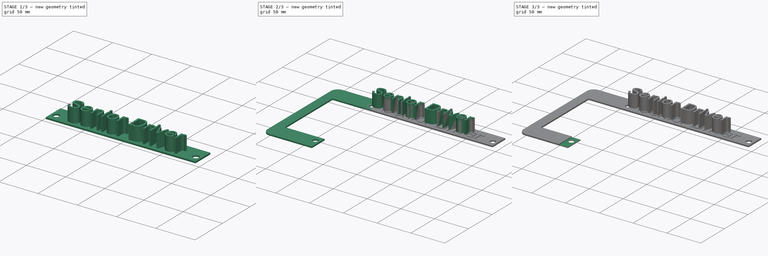
[diagram: build sequence overview — one tinted view per stage of 3, left to right]
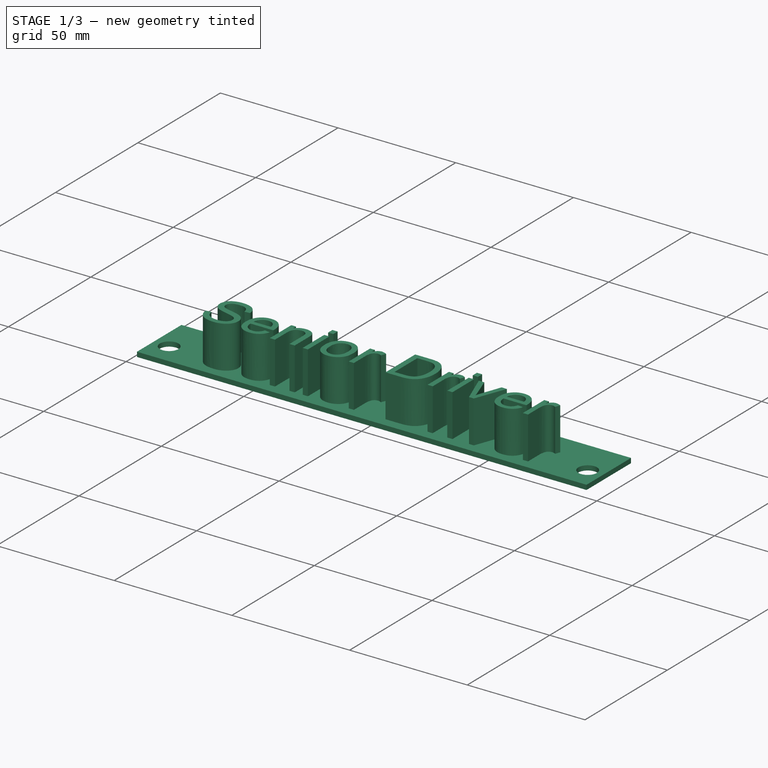
[diagram: stage 1 of 3 — iso view after this stage's code; geometry added in this stage tinted green]
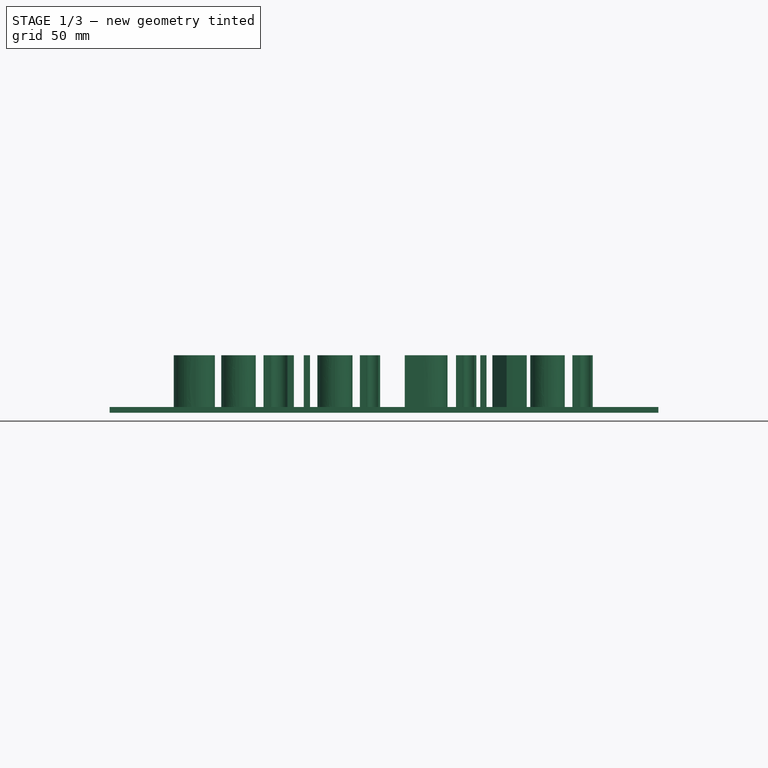
[diagram: stage 1 of 3 — front view after this stage's code; geometry added in this stage tinted green]
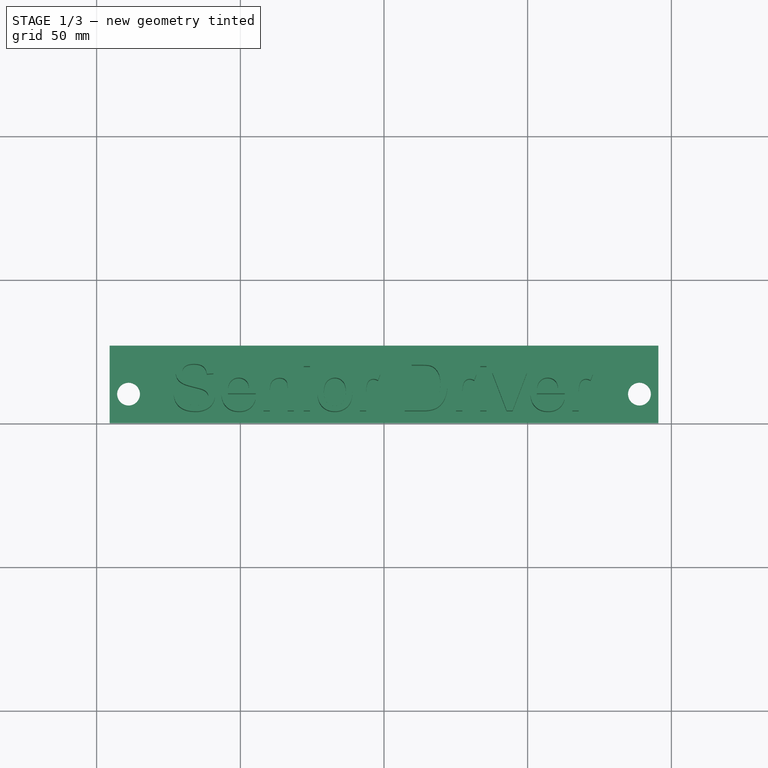
[diagram: stage 1 of 3 — top view after this stage's code; geometry added in this stage tinted green]
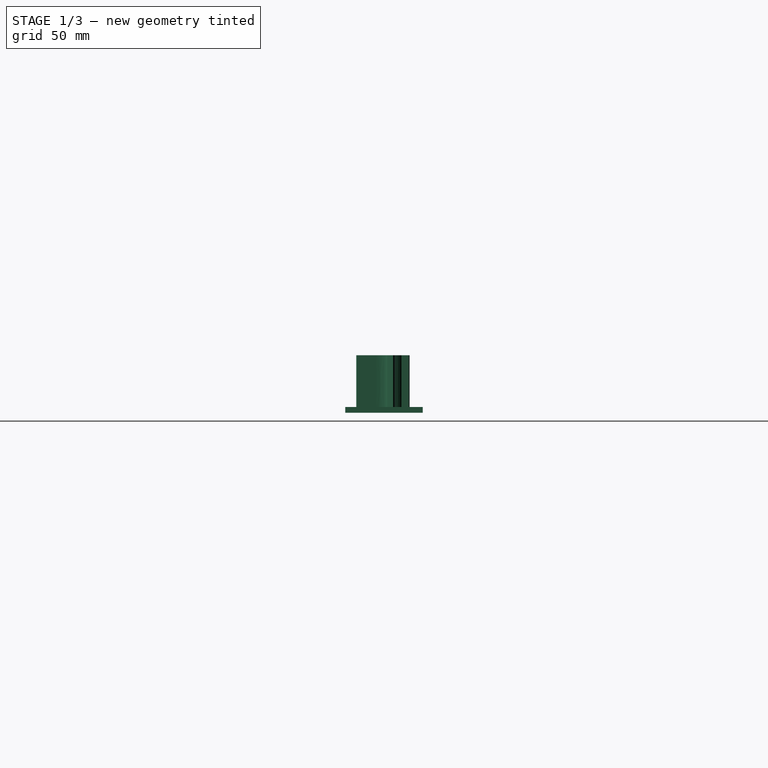
[diagram: stage 1 of 3 — right view after this stage's code; geometry added in this stage tinted green]
FCSTD DOCUMENT  (FreeCAD 0.22R35554 (Git))
Label: License_plate_frame_V2
License: All rights reserved
LicenseURL: http://en.wikipedia.org/wiki/All_rights_reserved
objects: Sketcher::SketchObject×2, PartDesign::Pad×2, PartDesign::SubtractiveBox×2, PartDesign::Body×2, Part::Part2DObjectPython×2, Part::Extrusion×2, Spreadsheet::Sheet×1, Part::Cut×1
note: 17 computed .brp shape members not serialized (recipe doc carries the construction recipe); baked Part::Feature solids carry a one-line shape summary decoded from their .brp

FEATURE [PartDesign::Body] Body001
  Group = -> [Sketch,Pad,Box,Box001]
  Origin = -> Origin001
  Tip = -> Box001
FEATURE [Sketcher::SketchObject] Sketch001
  FullyConstrained = true
  MapMode = 5
  Support = -> [XY_Plane]
  expr: Constraints[11] = <<vars>>.hole_dia
  expr: Constraints[12] = <<vars>>.hole_horizontal / 2
  expr: Constraints[13] = <<vars>>.hole_vertical / 2
  expr: Constraints[14] = <<vars>>.hole_horizontal / 2
  expr: Constraints[15] = <<vars>>.hole_vertical / 2
  expr: Constraints[16] = <<vars>>.width / 2 + <<vars>>.plate_height
  expr: Constraints[8] = <<vars>>.border_width + 1
  expr: Constraints[9] = <<vars>>.banner_length + <<vars>>.border_width
  sketch-geometry (6):
    g0: LineSegment StartX=-95.5 StartY=77.2 StartZ=0 EndX=-95.5 EndY=50.2 EndZ=0
    g1: LineSegment StartX=-95.5 StartY=50.2 StartZ=0 EndX=95.5 EndY=50.2 EndZ=0
    g2: LineSegment StartX=95.5 StartY=50.2 StartZ=0 EndX=95.5 EndY=77.2 EndZ=0
    g3: LineSegment StartX=95.5 StartY=77.2 StartZ=0 EndX=-95.5 EndY=77.2 EndZ=0
    g4: Circle CenterX=-88.9 CenterY=60.325 CenterZ=0 NormalX=0 NormalY=0 NormalZ=1 AngleXU=0 Radius=3.96875
    g5: Circle CenterX=88.9 CenterY=60.325 CenterZ=0 NormalX=0 NormalY=0 NormalZ=1 AngleXU=0 Radius=3.96875
  constraints (17):
    c: Coincident(g0,g1)
    c: Coincident(g1,g2)
    c: Coincident(g2,g3)
    c: Coincident(g3,g0)
    c: Vertical(g0)
    c: Vertical(g2)
    c: Horizontal(g1)
    c: Symmetric(g0,g2,g-2)
    c: DistanceY(g0,g0) = 27
    c: DistanceX(g3,g3) = 191
    c: Equal(g4,g5)
    c: Diameter(g4) = 7.9375
    c: DistanceX(g4,g-1) = 88.9
    c: DistanceY(g-1,g4) = 60.325
    c: DistanceX(g5) = 88.9
    c: DistanceY(g-1,g5) = 60.325
    c: Distance(g-1,g3) = 77.2
FEATURE [PartDesign::Body] Body
  Group = -> [Sketch001]
  Origin = -> Origin
FEATURE [PartDesign::Pad] Pad001
  Direction = (0,0,1)
  Length = 2
  Length2 = 10
  Profile = -> Sketch001
  ReferenceAxis = -> Sketch001 [N_Axis]
  Type = 0
  expr: Length = <<vars>>.plate_height * 2
FEATURE [Part::Part2DObjectPython] ShapeString001  # Draft 2D object (typed FeaturePython)
  FontFile = <path>
  Fuse = false
  Justification = 6
  JustificationReference = 0
  KeepLeftMargin = false
  MakeFace = true
  ObliqueAngle = 0
  Placement = pos=(-73.17,54.29,2) rot=(0,0,1;0rad)
  ScaleToSize = true
  Size = 18
  String = Senior Driver
  Tracking = 0
FEATURE [Part::Extrusion] Extrude002
  Base = -> ShapeString001
  Dir = (0,0,1)
  DirMode = 2
  FaceMakerClass = Part::FaceMakerBullseye
  LengthFwd = 19
  LengthRev = 0
  Placement = pos=(0,0,-1) rot=(0,0,1;0rad)
  Solid = false
  Symmetric = false
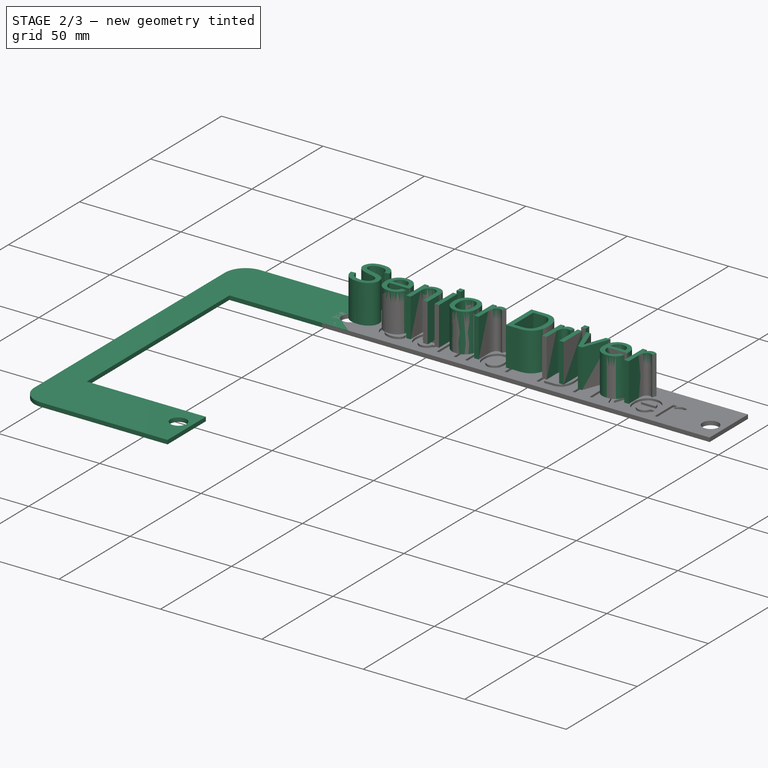
[diagram: stage 2 of 3 — iso view after this stage's code; geometry added in this stage tinted green]
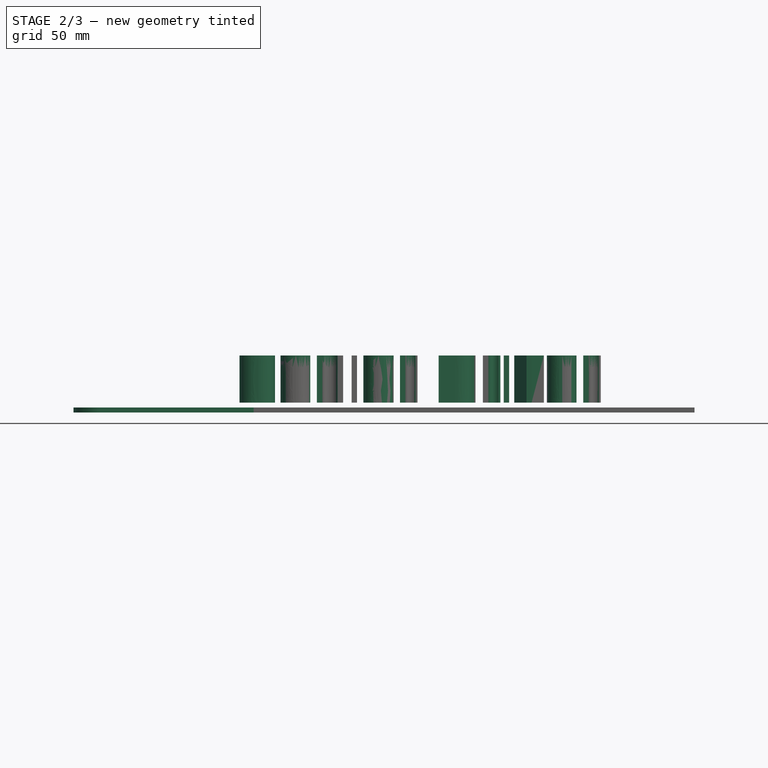
[diagram: stage 2 of 3 — front view after this stage's code; geometry added in this stage tinted green]
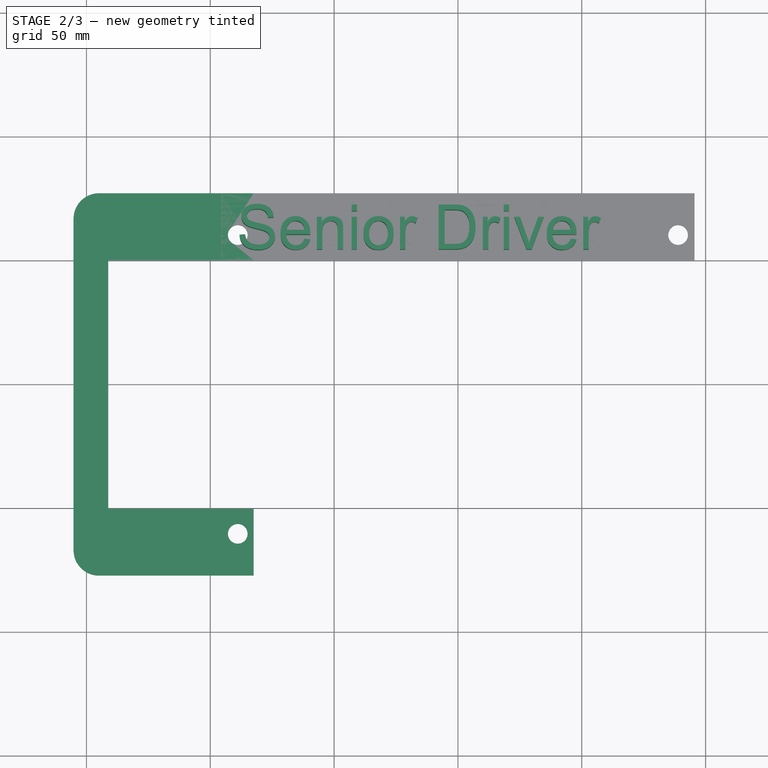
[diagram: stage 2 of 3 — top view after this stage's code; geometry added in this stage tinted green]
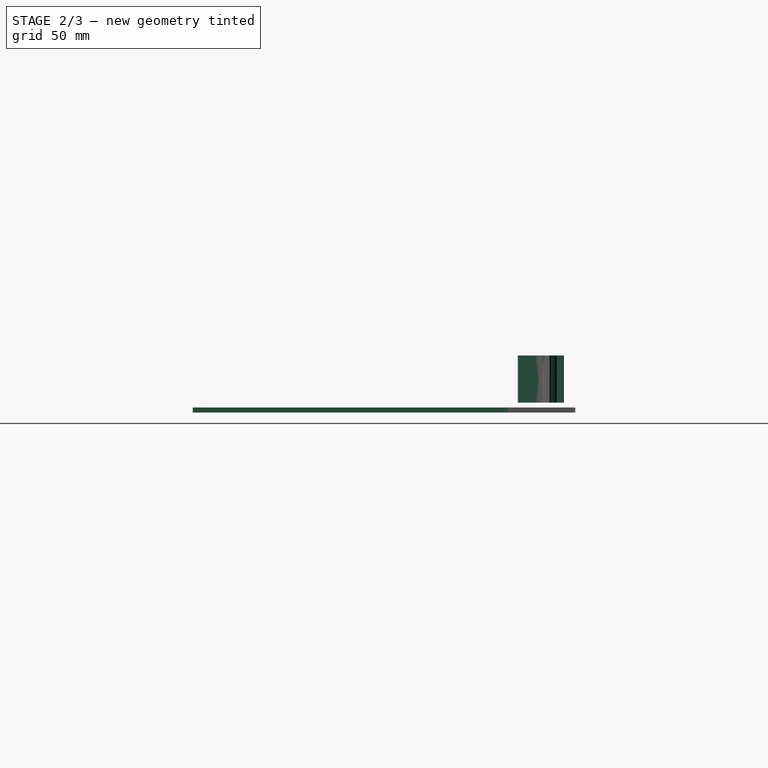
[diagram: stage 2 of 3 — right view after this stage's code; geometry added in this stage tinted green]
FEATURE [Spreadsheet::Sheet] Spreadsheet  label="vars"
  cells = A1='plate length; B1(length)=308.4; A2='plate width; B2(width)=152.4; A3='plate height; B3(plate_height)=1; A4='hole diameter; B4(hole_dia)=7.9375; A5='hole horizontal; B5(hole_horizontal)=177.8; A6='hole vertical; B6(hole_vertical)=120.65; A7='border width; B7(border_width)=26; A8='banner length; B8(banner_length)=165
FEATURE [Sketcher::SketchObject] Sketch
  FullyConstrained = true
  MapMode = 5
  Support = -> [XY_Plane001]
  expr: Constraints[16] = <<vars>>.border_width + 1
  expr: Constraints[17] = <<vars>>.width + 2
  expr: Constraints[18] = -<<vars>>.banner_length / 2
  expr: Constraints[19] = <<vars>>.length / 2 - <<vars>>.border_width / 2
  expr: Constraints[20] = <<vars>>.length / 2 + <<vars>>.plate_height
  expr: Constraints[22] = <<vars>>.hole_dia
  expr: Constraints[23] = <<vars>>.hole_horizontal / 2
  expr: Constraints[24] = <<vars>>.hole_vertical / 2
  expr: Constraints[25] = <<vars>>.hole_horizontal / 2
  expr: Constraints[26] = <<vars>>.hole_vertical / 2
  sketch-geometry (14):
    g0: LineSegment StartX=-82.5 StartY=77.2 StartZ=0 EndX=-144.919 EndY=77.2 EndZ=0
    g1: LineSegment StartX=-155.2 StartY=66.9187 StartZ=0 EndX=-155.2 EndY=-66.9187 EndZ=0
    g2: LineSegment StartX=-144.919 StartY=-77.2 StartZ=0 EndX=-82.5 EndY=-77.2 EndZ=0
    g3: LineSegment StartX=-82.5 StartY=-77.2 StartZ=0 EndX=-82.5 EndY=-50.2 EndZ=0
    g4: LineSegment StartX=-82.5 StartY=-50.2 StartZ=0 EndX=-141.2 EndY=-50.2 EndZ=0
    g5: LineSegment StartX=-141.2 StartY=-50.2 StartZ=0 EndX=-141.2 EndY=50.2 EndZ=0
    g6: LineSegment StartX=-141.2 StartY=50.2 StartZ=0 EndX=-82.5 EndY=50.2 EndZ=0
    g7: LineSegment StartX=-82.5 StartY=50.2 StartZ=0 EndX=-82.5 EndY=77.2 EndZ=0
    g8: Circle CenterX=-88.9 CenterY=60.325 CenterZ=0 NormalX=0 NormalY=0 NormalZ=1 AngleXU=0 Radius=3.96875
    g9: Circle CenterX=-88.9 CenterY=-60.325 CenterZ=0 NormalX=0 NormalY=0 NormalZ=1 AngleXU=0 Radius=3.96875
    g10: ArcOfCircle CenterX=-144.919 CenterY=66.9187 CenterZ=0 NormalX=0 NormalY=0 NormalZ=1 AngleXU=0 Radius=10.2813 StartAngle=1.5708 EndAngle=3.14159
    g11: GeomPoint X=-155.2 Y=77.2 Z=0
    g12: ArcOfCircle CenterX=-144.919 CenterY=-66.9187 CenterZ=0 NormalX=0 NormalY=0 NormalZ=1 AngleXU=0 Radius=10.2813 StartAngle=3.14159 EndAngle=4.71239
    g13: GeomPoint X=-155.2 Y=-77.2 Z=0
  constraints (37):
    c: Equal(g7,g3)
    c: Vertical(g1)
    c: Vertical(g7)
    c: Vertical(g3)
    c: Horizontal(g0)
    c: Horizontal(g6)
    c: Horizontal(g4)
    c: Horizontal(g2)
    c: Equal(g4,g6)
    c: Coincident(g7,g0)
    c: Coincident(g7,g6)
    c: Coincident(g3,g4)
    c: Coincident(g3,g2)
    c: Coincident(g6,g5)
    c: Coincident(g4,g5)
    c: Symmetric(g5,g4,g-1)
    c: DistanceY(g7,g7) = 27
    c: DistanceY(g13,g11) = 154.4
    c: DistanceX(g-2,g0) = -82.5
    c: Distance(g-1,g5) = 141.2
    c: Distance(g-1,g1) = 155.2
    c: Equal(g8,g9)
    c: Diameter(g8) = 7.9375
    c: DistanceX(g8,g-1) = 88.9
    c: DistanceY(g-1,g8) = 60.325
    c: DistanceX(g9,g-1) = 88.9
    c: DistanceY(g9,g-1) = 60.325
    c: PointOnObject(g11,g0)
    c: PointOnObject(g11,g1)
    c: Tangent(g0,g10) = -1.5708
    c: Tangent(g1,g10) = -1.5708
    c: PointOnObject(g13,g1)
    c: PointOnObject(g13,g2)
    c: Tangent(g1,g12) = -1.5708
    c: Tangent(g2,g12) = -1.5708
    c: Equal(g10,g12)
    c: Block(g10)
FEATURE [PartDesign::Pad] Pad
  Direction = (0,0,1)
  Length = 2
  Length2 = 10
  Profile = -> Sketch
  ReferenceAxis = -> Sketch [N_Axis]
  Type = 0
FEATURE [Part::Part2DObjectPython] ShapeString  # Draft 2D object (typed FeaturePython)
  FontFile = <path>
  Fuse = false
  Justification = 6
  JustificationReference = 0
  KeepLeftMargin = false
  MakeFace = true
  ObliqueAngle = 0
  Placement = pos=(-73.17,54.29,2) rot=(0,0,1;0rad)
  ScaleToSize = true
  Size = 18
  String = Senior Driver
  Tracking = 0
FEATURE [Part::Extrusion] Extrude001
  Base = -> ShapeString
  Dir = (0,0,1)
  DirMode = 2
  FaceMakerClass = Part::FaceMakerBullseye
  LengthFwd = 19
  LengthRev = 0
  Placement = pos=(-15,0,2) rot=(0,0,1;0rad)
  Solid = false
  Symmetric = false
FEATURE [Part::Cut] Cut
  Base = -> Pad001
  Tool = -> Extrude002
note: 2 file-system paths scrubbed to <path> (originals preserved in the JSON sidecar)
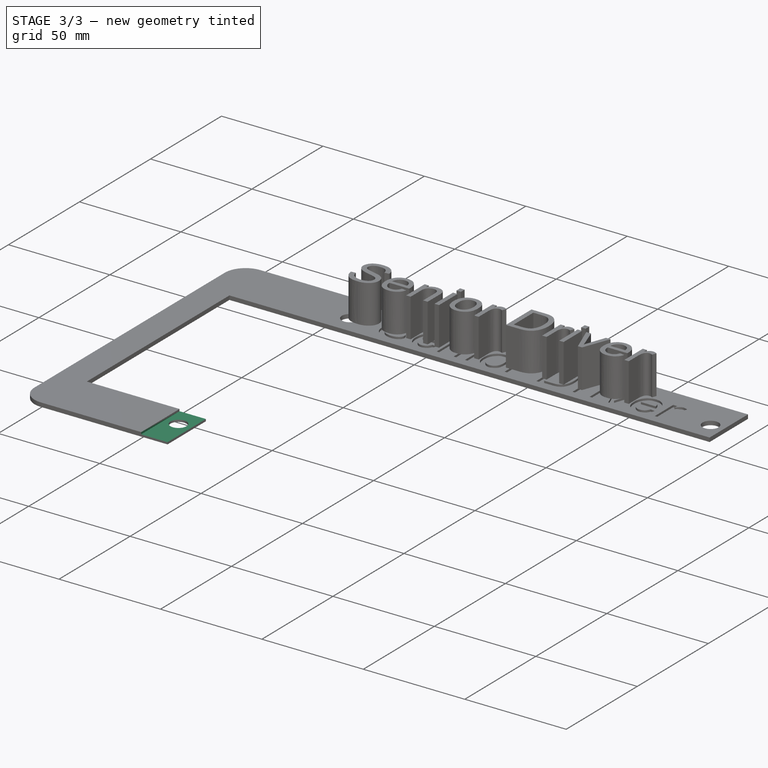
[diagram: stage 3 of 3 — iso view after this stage's code; geometry added in this stage tinted green]
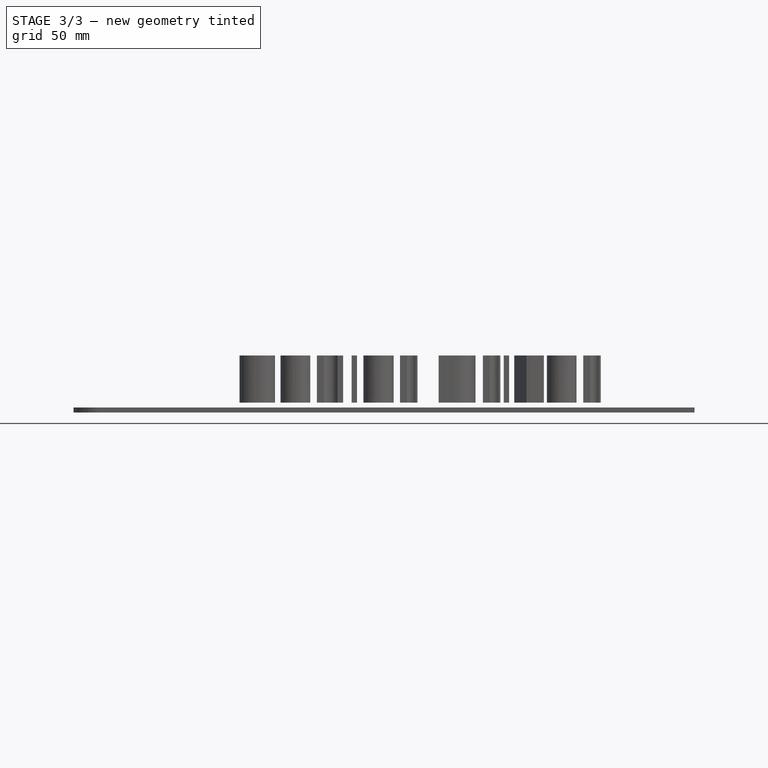
[diagram: stage 3 of 3 — front view after this stage's code; geometry added in this stage tinted green]
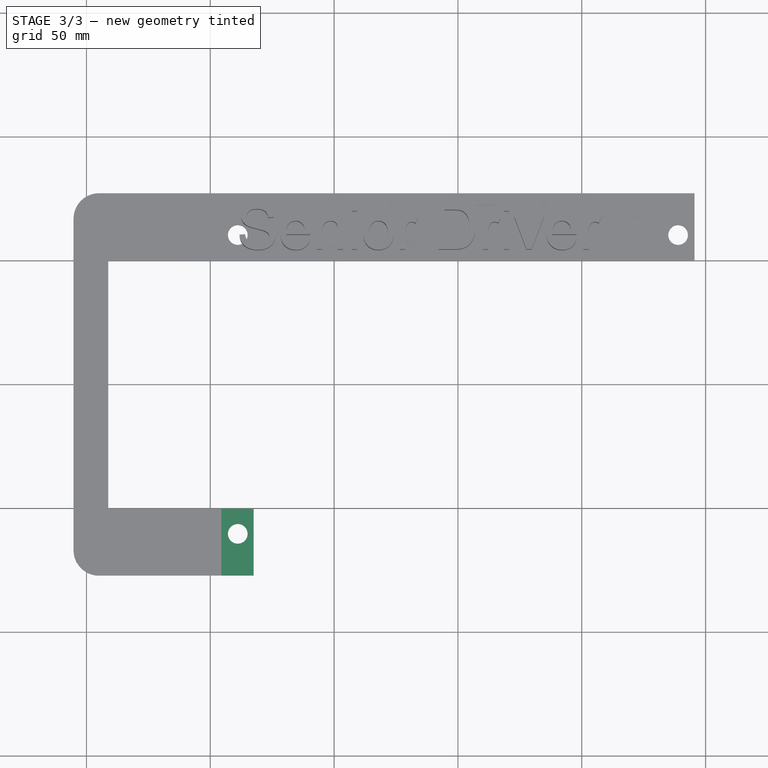
[diagram: stage 3 of 3 — top view after this stage's code; geometry added in this stage tinted green]
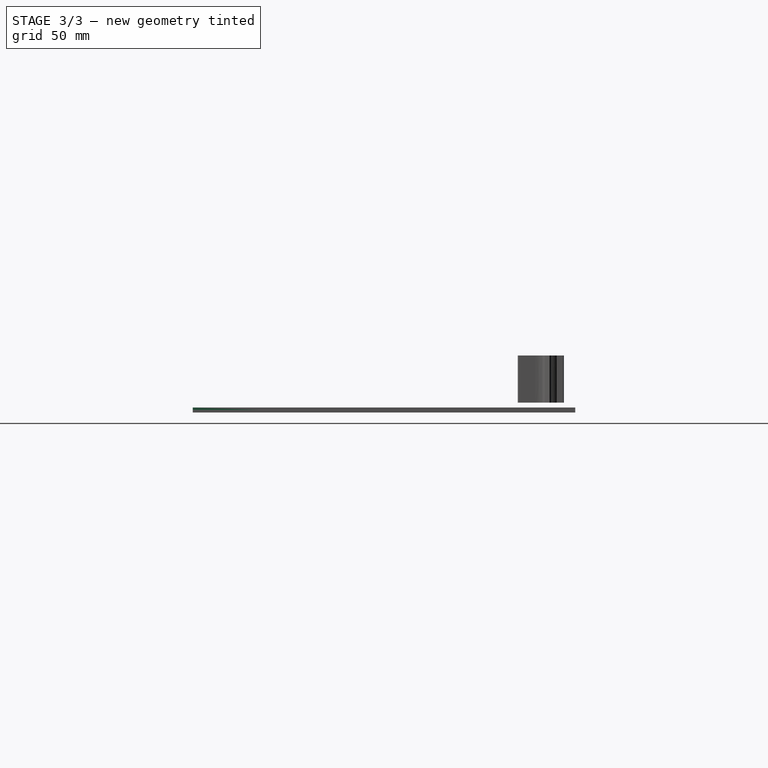
[diagram: stage 3 of 3 — right view after this stage's code; geometry added in this stage tinted green]
FEATURE [PartDesign::SubtractiveBox] Box
  AttacherType = Attacher::AttachEngine3D
  AttachmentOffset = pos=(-95.5,50.2,-1) rot=(0,0,1;0rad)
  BaseFeature = -> Pad
  Height = 1
  Length = 13
  MapMode = 5
  Placement = pos=(-95.5,50.2,1) rot=(0,0,1;0rad)
  Support = -> [Pad]
  Width = 27
  expr: .AttachmentOffset.Base.x = -<<vars>>.banner_length / 2 - <<vars>>.border_width / 2
  expr: .AttachmentOffset.Base.y = <<vars>>.width / 2 - <<vars>>.border_width
  expr: .AttachmentOffset.Base.z = -<<vars>>.plate_height
  expr: Length = <<vars>>.border_width / 2
  expr: Width = <<vars>>.border_width + 1
FEATURE [PartDesign::SubtractiveBox] Box001
  AttacherType = Attacher::AttachEngine3D
  AttachmentOffset = pos=(0,-127.4,-1) rot=(0,0,1;0rad)
  BaseFeature = -> Box
  Height = 1
  Length = 13
  MapMode = 5
  Placement = pos=(-95.5,-77.2,1) rot=(0,0,1;0rad)
  Support = -> [Box]
  Width = 27
  expr: .AttachmentOffset.Base.y = -<<vars>>.width + <<vars>>.border_width - 1
  expr: .AttachmentOffset.Base.z = -<<vars>>.plate_height
  expr: Height = <<vars>>.plate_height
  expr: Length = <<vars>>.border_width / 2
  expr: Width = <<vars>>.border_width + 1
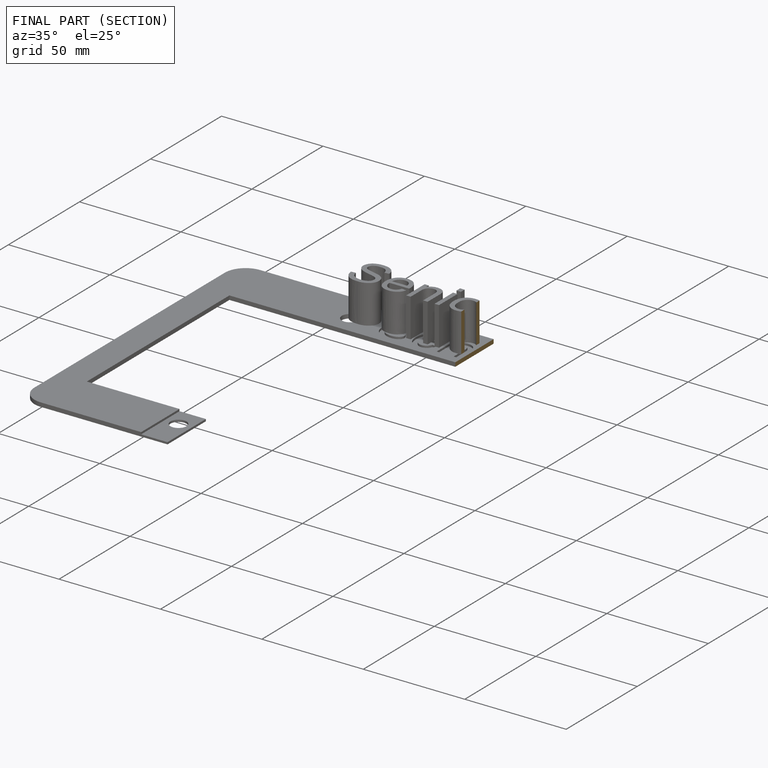
[diagram: finished part — half-section view (interior)]
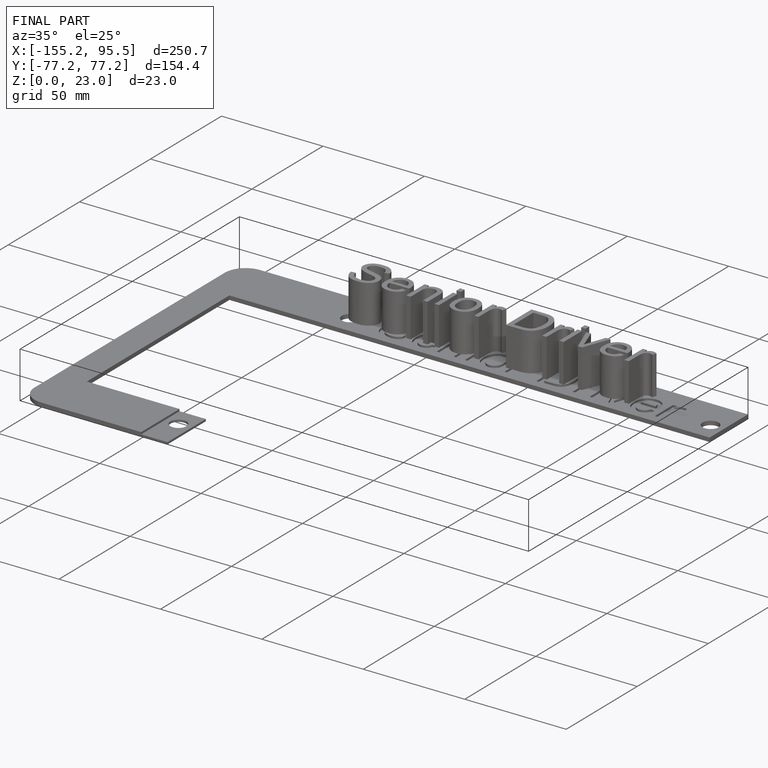
[diagram: finished part — iso view with bounding-box wireframe]
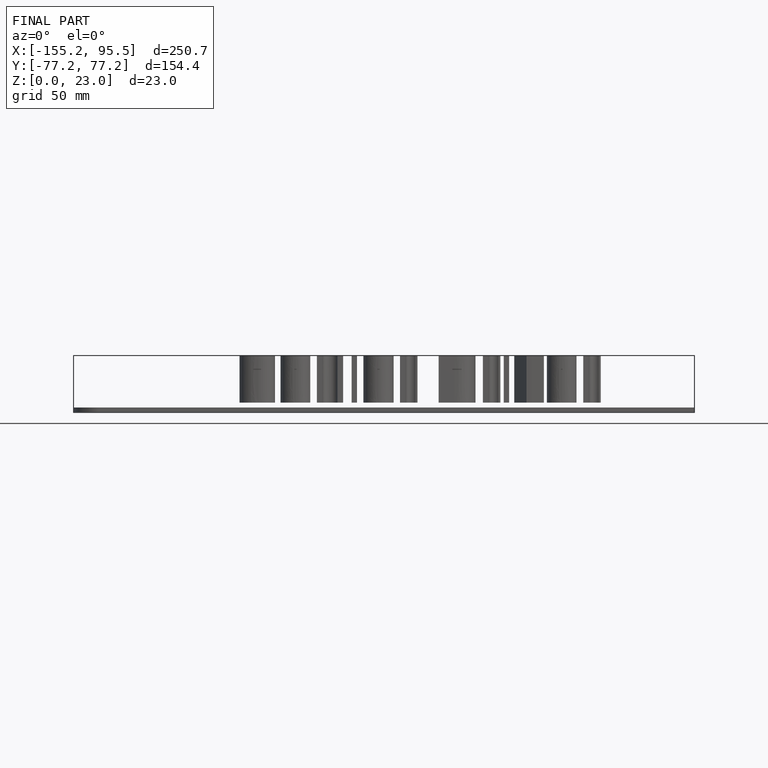
[diagram: finished part — front view with bounding-box wireframe]
